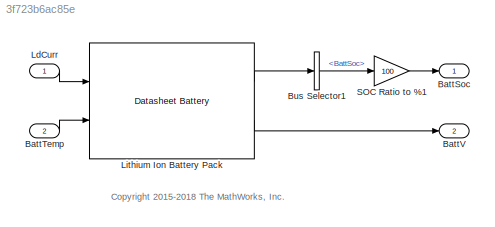
MODEL slx_3f723b6ac85e
KIND model
CONFIG AbsTol = auto
CONFIG EnableMultiTasking = off
CONFIG FixedStep = auto
CONFIG MaxStep = auto
CONFIG MinStep = auto
CONFIG RelTol = 1e-3
CONFIG SampleTimeConstraint = Unconstrained
CONFIG Solver = VariableStepAuto
CONFIG SolverName = VariableStepAuto
CONFIG StartTime = 0.0
CONFIG StopTime = 10.0
BLOCK [Outport] BattSoc
  VectorParamsAs1DForOutWhenUnconnected = off
BLOCK [Inport] BattTemp
  Port = 2
BLOCK [Outport] BattV
  Port = 2
  VectorParamsAs1DForOutWhenUnconnected = off
BLOCK [BusSelector] Bus Selector1
  OutputSignals = BattSoc
  Ports = [1, 1]
BLOCK [Inport] LdCurr
BLOCK [Reference] Lithium Ion Battery Pack  REF=autolibdatasheetbattery/Datasheet Battery
  Ports = [2, 2]
  SourceBlock = autolibdatasheetbattery/Datasheet Battery
  SourceProductBaseCode = PW
  SourceType = Datasheet Battery
BLOCK [Gain] SOC Ratio to %1
  Gain = 100
ANNOTATION (root): <copyright redacted>
LINE BattTemp:1 -> Lithium Ion Battery Pack:2
LINE Bus Selector1:1 -> SOC Ratio to %1:1
LINE LdCurr:1 -> Lithium Ion Battery Pack:1
LINE Lithium Ion Battery Pack:1 -> Bus Selector1:1
LINE Lithium Ion Battery Pack:2 -> BattV:1
LINE SOC Ratio to %1:1 -> BattSoc:1
